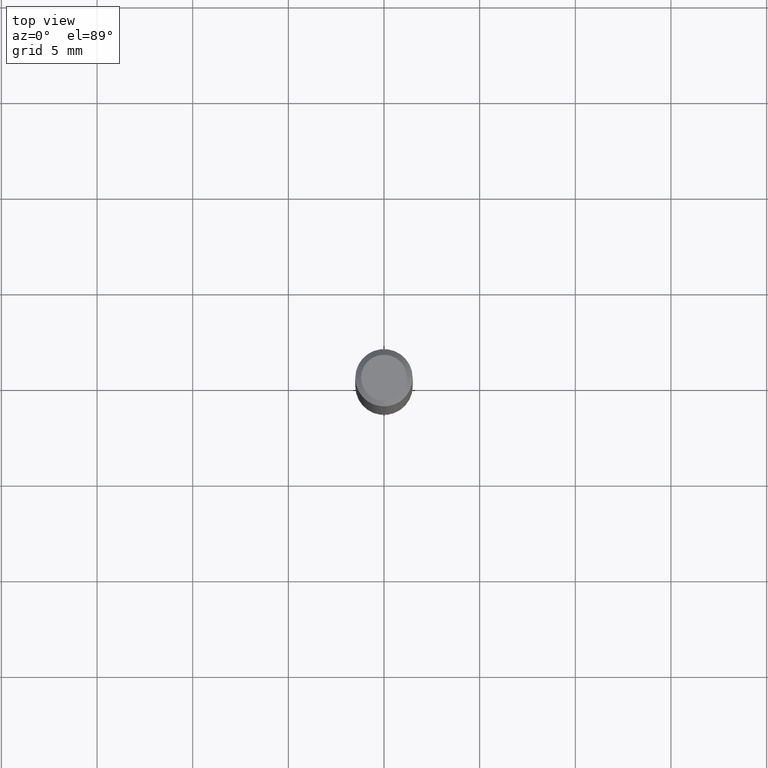
[diagram: clean part render]
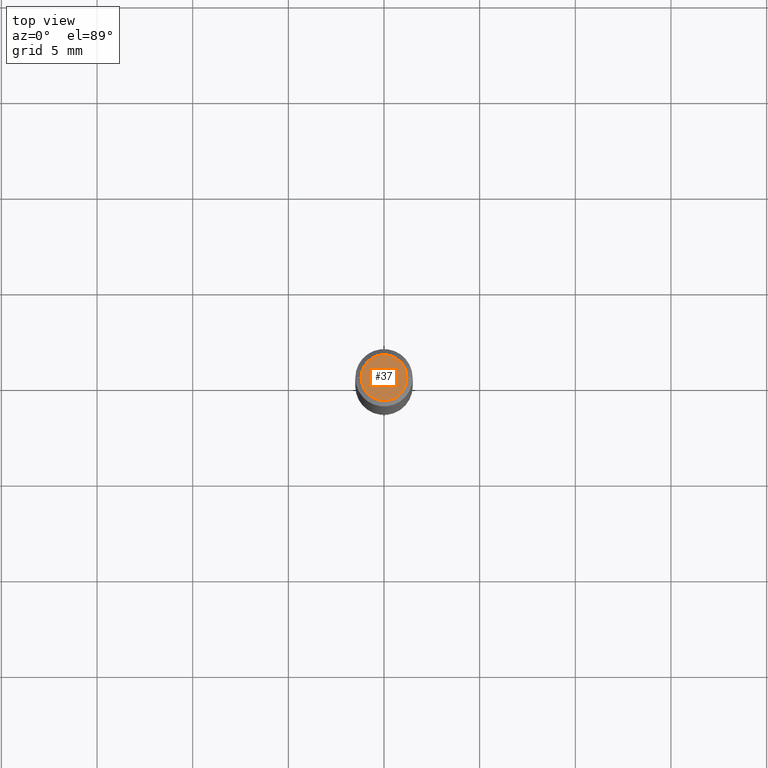
[diagram: same view with one face highlighted and labeled with its STEP entity id]
A machine part, top view. The second image highlights one B-rep face of the part: STEP entity #37.
In plain terms, the highlighted planar face has unit normal (0, -0, -1).
Its self-contained STEP definition (entity closure, byte-faithful):
#37 = ADVANCED_FACE ( 'NONE', ( #205 ), #259, .F. ) ;
#40 = CARTESIAN_POINT ( 'NONE',  ( 8.265746106709734507E-48, -1.180129479067563789E-33, -3.380025165646692144E-19 ) ) ;
#74 = AXIS2_PLACEMENT_3D ( 'NONE', #252, #223, #91 ) ;
#79 = AXIS2_PLACEMENT_3D ( 'NONE', #358, #114, #467 ) ;
#91 = DIRECTION ( 'NONE',  ( -1.000000000000000000, 6.982962677686265922E-15, -4.876176775795935793E-29 ) ) ;
#114 = DIRECTION ( 'NONE',  ( -2.445468806185136597E-29, 3.491481338843145583E-15, 1.000000000000000000 ) ) ;
#152 = EDGE_LOOP ( 'NONE', ( #248, #239 ) ) ;
#205 = FACE_OUTER_BOUND ( 'NONE', #152, .T. ) ;
#216 = AXIS2_PLACEMENT_3D ( 'NONE', #40, #278, #331 ) ;
#223 = DIRECTION ( 'NONE',  ( 2.438088387897960049E-29, -3.491481338843145188E-15, -1.000000000000000000 ) ) ;
#239 = ORIENTED_EDGE ( 'NONE', *, *, #421, .T. ) ;
#248 = ORIENTED_EDGE ( 'NONE', *, *, #459, .T. ) ;
#252 = CARTESIAN_POINT ( 'NONE',  ( 4.132873053354867254E-48, -5.900647395337818946E-34, -1.690012582823346072E-19 ) ) ;
#259 = PLANE ( 'NONE',  #74 ) ;
#278 = DIRECTION ( 'NONE',  ( -2.445468806185136597E-29, 3.491481338843145583E-15, 1.000000000000000000 ) ) ;
#282 = VERTEX_POINT ( 'NONE', #367 ) ;
#293 = CIRCLE ( 'NONE', #79, 0.04724000000000000421 ) ;
#331 = DIRECTION ( 'NONE',  ( 1.000000000000000000, -6.982962677686266711E-15, 4.876185090822587894E-29 ) ) ;
#358 = CARTESIAN_POINT ( 'NONE',  ( 8.265746106709734507E-48, -1.180129479067563789E-33, -3.380025165646692144E-19 ) ) ;
#367 = CARTESIAN_POINT ( 'NONE',  ( 0.04724000000000000421, -3.852183633974369838E-16, -3.380025165621689721E-19 ) ) ;
#377 = VERTEX_POINT ( 'NONE', #407 ) ;
#407 = CARTESIAN_POINT ( 'NONE',  ( -0.04724000000000000421, 3.504923541997677848E-16, -3.380025165670481712E-19 ) ) ;
#421 = EDGE_CURVE ( 'NONE', #282, #377, #293, .T. ) ;
#452 = CIRCLE ( 'NONE', #216, 0.04724000000000000421 ) ;
#459 = EDGE_CURVE ( 'NONE', #377, #282, #452, .T. ) ;
#467 = DIRECTION ( 'NONE',  ( 1.000000000000000000, -6.982962677686266711E-15, 4.876185090822587894E-29 ) ) ;